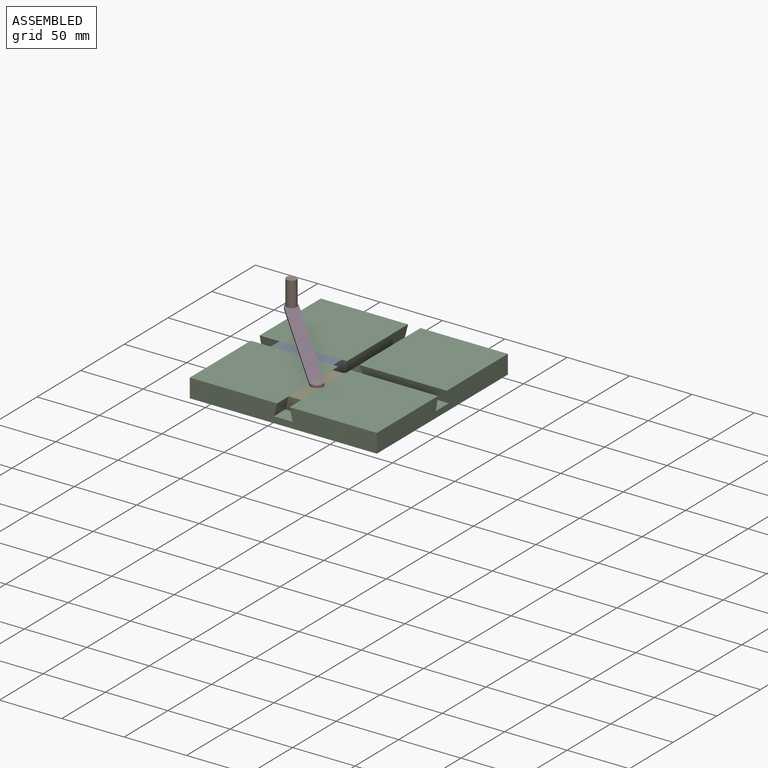
[diagram: assembled view]
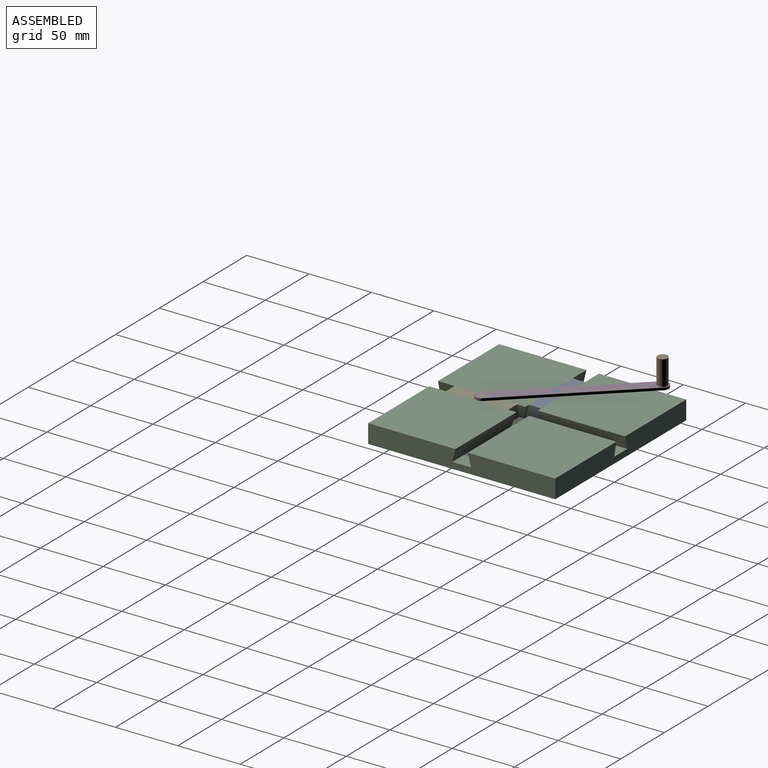
[diagram: assembled view, second angle]
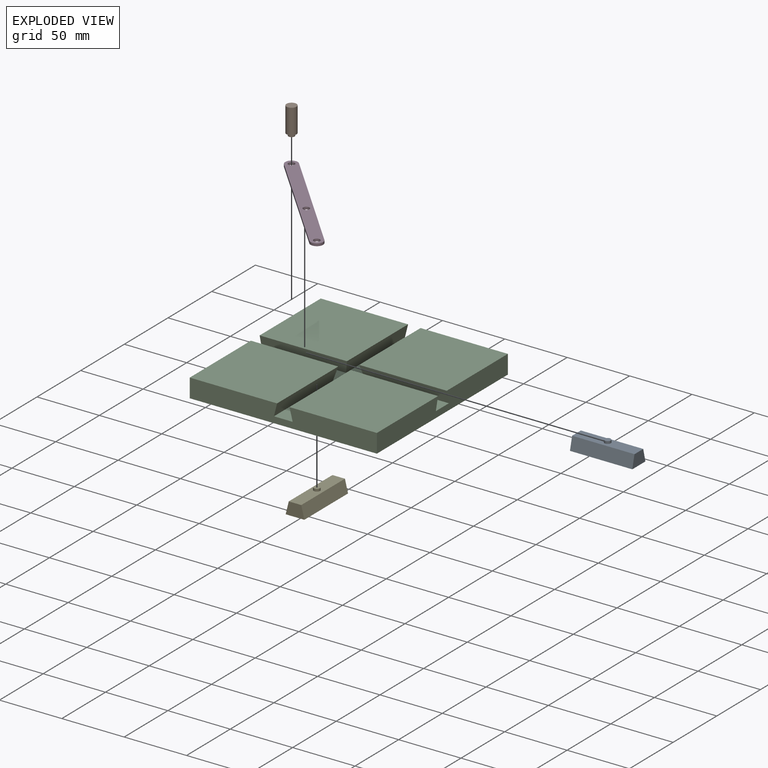
[diagram: exploded view]
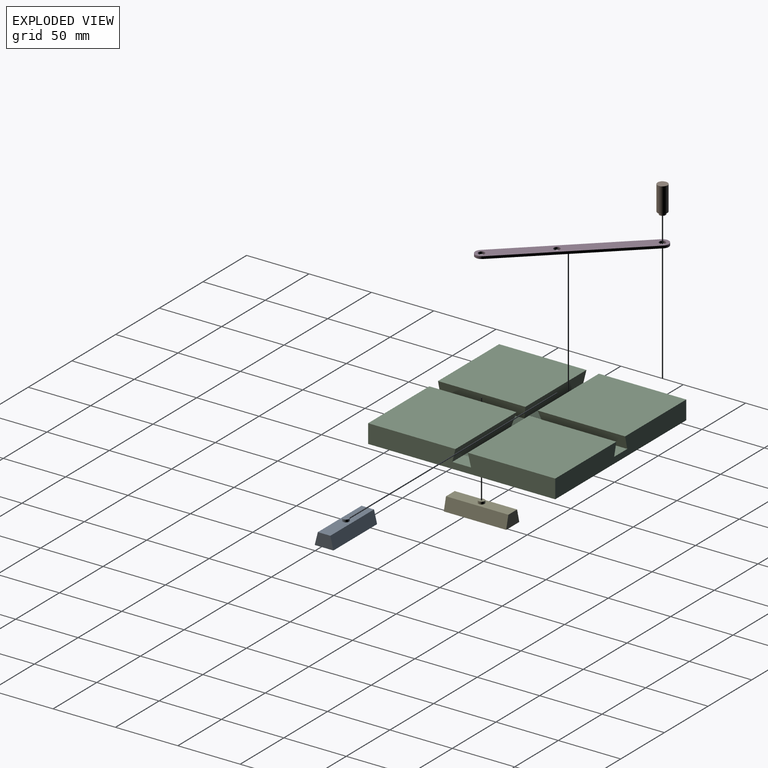
[diagram: exploded view, second angle]
ASSEMBLY  parts=5 mates=5
PART A: 8 faces, bbox 15x50x12 mm
  f0: plane 50x10mm, normal (0.97,0,0.24), area 515.4mm2, adj f1,f3,f4,f5
  f1: plane 50x10mm, normal (0,0,1), area 480.4mm2, adj f0,f2,f4,f5,f6
  f2: plane 50x10mm, normal (-0.97,0,0.24), area 515.4mm2, adj f1,f3,f4,f5
  f3: plane 50x15mm, normal (0,0,-1), area 750mm2, adj f0,f2,f4,f5
  f4: plane 15x10mm, normal (0,-1,0), area 125mm2, adj f0,f1,f2,f3
  f5: plane 15x10mm, normal (0,1,0), area 125mm2, adj f0,f1,f2,f3
  f6: cylinder r=2.5mm len=5mm, axis (0,0,-1), area 31.4mm2, adj f1,f7
  f7: plane 5x5mm, normal (0,0,1), area 19.6mm2, adj f6
PART B: 5 faces, bbox 8x8x22 mm
  f0: cylinder r=4mm len=20mm, axis (0,0,-1), area 502.7mm2, adj f1,f2
  f1: plane 8x8mm, normal (0,0,1), area 50.3mm2, adj f0
  f2: plane 8x8mm, normal (0,0,-1), area 30.6mm2, adj f0,f3
  f3: cylinder r=2.5mm len=5mm, axis (0,0,1), area 31.4mm2, adj f2,f4
  f4: plane 5x5mm, normal (0,0,-1), area 19.6mm2, adj f3
PART C: 18 faces, bbox 150x150x15 mm
  f0: plane 70x70mm, normal (0,0,1), area 4900mm2, adj f3,f8,f9,f17
  f1: plane 70x70mm, normal (0,0,1), area 4900mm2, adj f5,f8,f10,f14
  f2: plane 70x10mm, normal (0.97,0,-0.24), area 708.7mm2, adj f6,f7,f13,f16
  f3: plane 70x10mm, normal (0.97,0,-0.24), area 708.7mm2, adj f0,f8,f13,f17
  f4: plane 70x10mm, normal (-0.97,0,-0.24), area 708.7mm2, adj f7,f11,f13,f15
  f5: plane 70x10mm, normal (-0.97,0,-0.24), area 708.7mm2, adj f1,f8,f13,f14
  f6: plane 70x70mm, normal (0,0,1), area 4900mm2, adj f2,f7,f9,f16
  f7: plane 150x15mm, normal (0,-1,0), area 2125mm2, adj f2,f4,f6,f9,f10,f11,f12,f13
  f8: plane 150x15mm, normal (0,1,0), area 2125mm2, adj f0,f1,f3,f5,f9,f10,f12,f13
  f9: plane 150x15mm, normal (-1,0,0), area 2125mm2, adj f0,f6,f7,f8,f12,f13,f16,f17
  f10: plane 150x15mm, normal (1,0,0), area 2125mm2, adj f1,f7,f8,f11,f12,f13,f14,f15
  f11: plane 70x70mm, normal (0,0,1), area 4900mm2, adj f4,f7,f10,f15
  f12: plane 150x150mm, normal (0,0,-1), area 22500mm2, adj f7,f8,f9,f10
  f13: plane 150x150mm, normal (0,0,1), area 4275mm2, adj f2,f3,f4,f5,f7,f8,f9,f10
  f14: plane 70x10mm, normal (0,-0.97,-0.24), area 708.7mm2, adj f1,f5,f10,f13
  f15: plane 70x10mm, normal (0,0.97,-0.24), area 708.7mm2, adj f4,f10,f11,f13
  f16: plane 70x10mm, normal (0,0.97,-0.24), area 708.7mm2, adj f2,f6,f9,f13
  f17: plane 70x10mm, normal (0,-0.97,-0.24), area 708.7mm2, adj f0,f3,f9,f13
PART D: 9 faces, bbox 130x10x2 mm
  f0: plane 120x2mm, normal (0,1,0), area 240mm2, adj f1,f6,f7,f8
  f1: cylinder r=5mm len=10mm, axis (0,0,-1), area 31.4mm2, adj f0,f2,f7,f8
  f2: plane 120x2mm, normal (0,-1,0), area 240mm2, adj f1,f6,f7,f8
  f3: cylinder r=2.5mm len=5mm, axis (0,0,-1), area 31.4mm2, adj f7,f8
  f4: cylinder r=2.5mm len=5mm, axis (0,0,-1), area 31.4mm2, adj f7,f8
  f5: cylinder r=2.5mm len=5mm, axis (0,0,-1), area 31.4mm2, adj f7,f8
  f6: cylinder r=5mm len=10mm, axis (0,0,-1), area 31.4mm2, adj f0,f2,f7,f8
  f7: plane 130x10mm, normal (0,0,1), area 1219.6mm2, adj f0,f1,f2,f3,f4,f5,f6
  f8: plane 130x10mm, normal (0,0,-1), area 1219.6mm2, adj f0,f1,f2,f3,f4,f5,f6
PART E: same geometry as A
PLACE A rot(axis=(0,0,-1),90deg) t=(-9.09,0,0)mm
PLACE B rot(axis=(0,0,1),45.3deg) t=(-205.61,61.1,17)mm
PLACE C at identity fixed
PLACE D rot(axis=(0,0,1),133deg) t=(-110.41,-57.45,15)mm
PLACE E t=(0,-11.58,0)mm
MATE revolute D.f1 <-> E.f6  axis (0,0,1) through (0,-36.58,17)mm
MATE revolute D.f4 <-> A.f6  axis (0,0,1) through (-34.09,0,17)mm
MATE slider C.f9 <-> A.f4  axis (-1,0,0) through (-75,0,5)mm
MATE slider C.f7 <-> E.f4  axis (0,-1,0) through (0,-75,5)mm
MATE revolute B.f0 <-> D.f5  axis (0,0,-1) through (-81.8,51.21,15)mm
